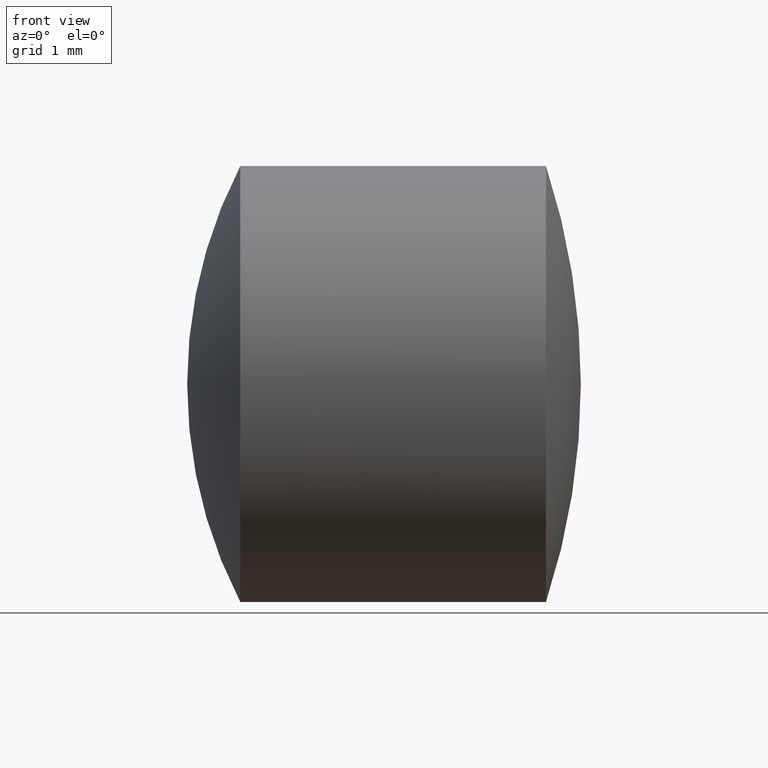
[diagram: clean part render]
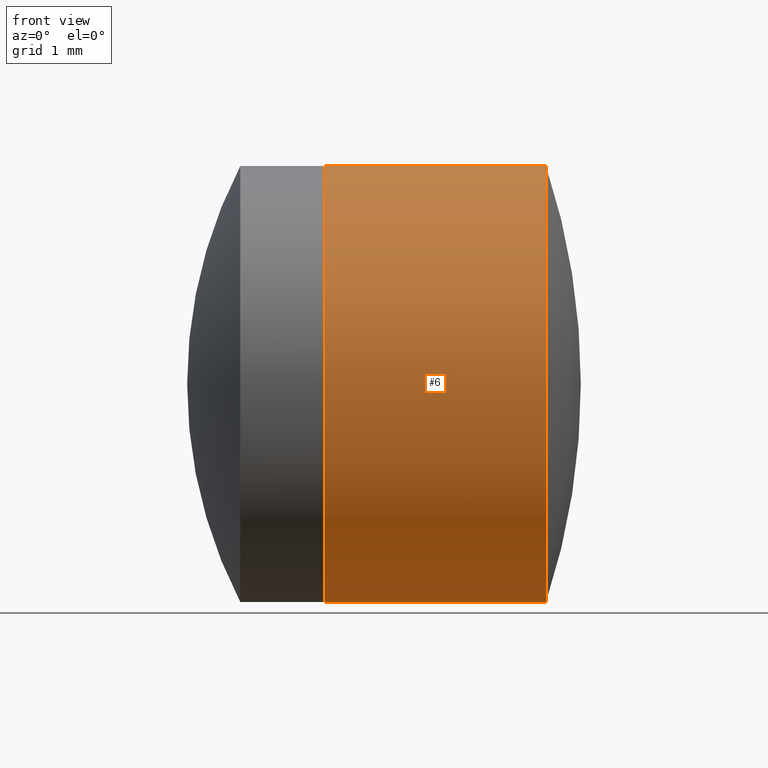
[diagram: same view with one face highlighted and labeled with its STEP entity id]
A machine part, front view. The second image highlights one B-rep face of the part: STEP entity #6.
In plain terms, the highlighted cylindrical surface (partial cylindrical patch) has radius 3.15 mm, axis along (-1, -0, -0).
Its self-contained STEP definition (entity closure, byte-faithful):
#1 = ORIENTED_EDGE ( 'NONE', *, *, #92, .T. ) ;
#6 = ADVANCED_FACE ( 'NONE', ( #339 ), #50, .T. ) ;
#7 = AXIS2_PLACEMENT_3D ( 'NONE', #344, #178, #16 ) ;
#16 = DIRECTION ( 'NONE',  ( 0.0000000000000000000, 0.0000000000000000000, 1.000000000000000000 ) ) ;
#40 = DIRECTION ( 'NONE',  ( 0.0000000000000000000, 0.0000000000000000000, 1.000000000000000000 ) ) ;
#50 = CYLINDRICAL_SURFACE ( 'NONE', #306, 3.149999999999999900 ) ;
#69 = LINE ( 'NONE', #245, #138 ) ;
#76 = DIRECTION ( 'NONE',  ( -1.000000000000000000, -0.0000000000000000000, -0.0000000000000000000 ) ) ;
#85 = CARTESIAN_POINT ( 'NONE',  ( 6.986827555344063100, 3.857637417314162200E-016, -3.149999999999999500 ) ) ;
#86 = CIRCLE ( 'NONE', #338, 3.150000000000000400 ) ;
#92 = EDGE_CURVE ( 'NONE', #296, #145, #303, .T. ) ;
#99 = CARTESIAN_POINT ( 'NONE',  ( -0.5519199926577972300, 0.0000000000000000000, 0.0000000000000000000 ) ) ;
#108 = CARTESIAN_POINT ( 'NONE',  ( 3.790307587695709700, 0.0000000000000000000, 3.149999999999999900 ) ) ;
#128 = LINE ( 'NONE', #184, #336 ) ;
#138 = VECTOR ( 'NONE', #211, 1000.000000000000000 ) ;
#145 = VERTEX_POINT ( 'NONE', #297 ) ;
#150 = ORIENTED_EDGE ( 'NONE', *, *, #154, .F. ) ;
#154 = EDGE_CURVE ( 'NONE', #291, #216, #86, .T. ) ;
#171 = EDGE_CURVE ( 'NONE', #296, #291, #69, .T. ) ;
#178 = DIRECTION ( 'NONE',  ( -1.000000000000000000, -0.0000000000000000000, -0.0000000000000000000 ) ) ;
#184 = CARTESIAN_POINT ( 'NONE',  ( -0.5519199926577972300, 0.0000000000000000000, 3.149999999999999900 ) ) ;
#211 = DIRECTION ( 'NONE',  ( -1.000000000000000000, -0.0000000000000000000, -0.0000000000000000000 ) ) ;
#213 = DIRECTION ( 'NONE',  ( -1.000000000000000000, -0.0000000000000000000, -0.0000000000000000000 ) ) ;
#214 = EDGE_CURVE ( 'NONE', #145, #216, #128, .T. ) ;
#215 = EDGE_LOOP ( 'NONE', ( #240, #1, #225, #150 ) ) ;
#216 = VERTEX_POINT ( 'NONE', #108 ) ;
#225 = ORIENTED_EDGE ( 'NONE', *, *, #214, .T. ) ;
#236 = DIRECTION ( 'NONE',  ( -1.000000000000000000, -0.0000000000000000000, -0.0000000000000000000 ) ) ;
#240 = ORIENTED_EDGE ( 'NONE', *, *, #171, .F. ) ;
#244 = CARTESIAN_POINT ( 'NONE',  ( 3.790307587695709700, 0.0000000000000000000, 0.0000000000000000000 ) ) ;
#245 = CARTESIAN_POINT ( 'NONE',  ( -0.5519199926577972300, 3.857637417314162700E-016, -3.149999999999999900 ) ) ;
#257 = CARTESIAN_POINT ( 'NONE',  ( 3.790307587695709700, 3.857637417314162200E-016, -3.149999999999999900 ) ) ;
#273 = DIRECTION ( 'NONE',  ( 0.0000000000000000000, 0.0000000000000000000, 1.000000000000000000 ) ) ;
#291 = VERTEX_POINT ( 'NONE', #257 ) ;
#296 = VERTEX_POINT ( 'NONE', #85 ) ;
#297 = CARTESIAN_POINT ( 'NONE',  ( 6.986827555344063100, 0.0000000000000000000, 3.149999999999999500 ) ) ;
#303 = CIRCLE ( 'NONE', #7, 3.149999999999999500 ) ;
#306 = AXIS2_PLACEMENT_3D ( 'NONE', #99, #236, #40 ) ;
#336 = VECTOR ( 'NONE', #213, 1000.000000000000000 ) ;
#338 = AXIS2_PLACEMENT_3D ( 'NONE', #244, #76, #273 ) ;
#339 = FACE_OUTER_BOUND ( 'NONE', #215, .T. ) ;
#344 = CARTESIAN_POINT ( 'NONE',  ( 6.986827555344063100, 0.0000000000000000000, 0.0000000000000000000 ) ) ;